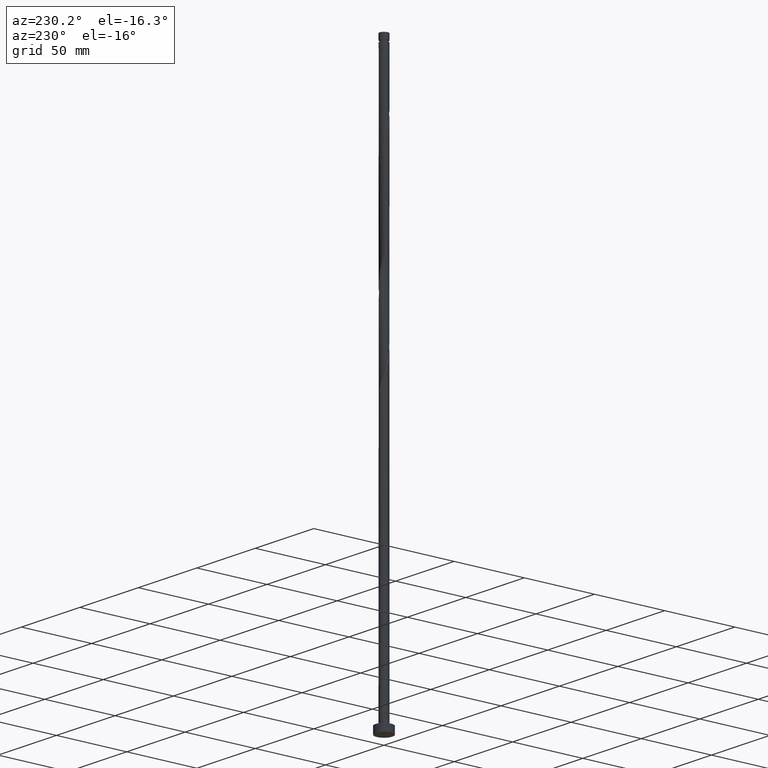
[diagram: clean part render]
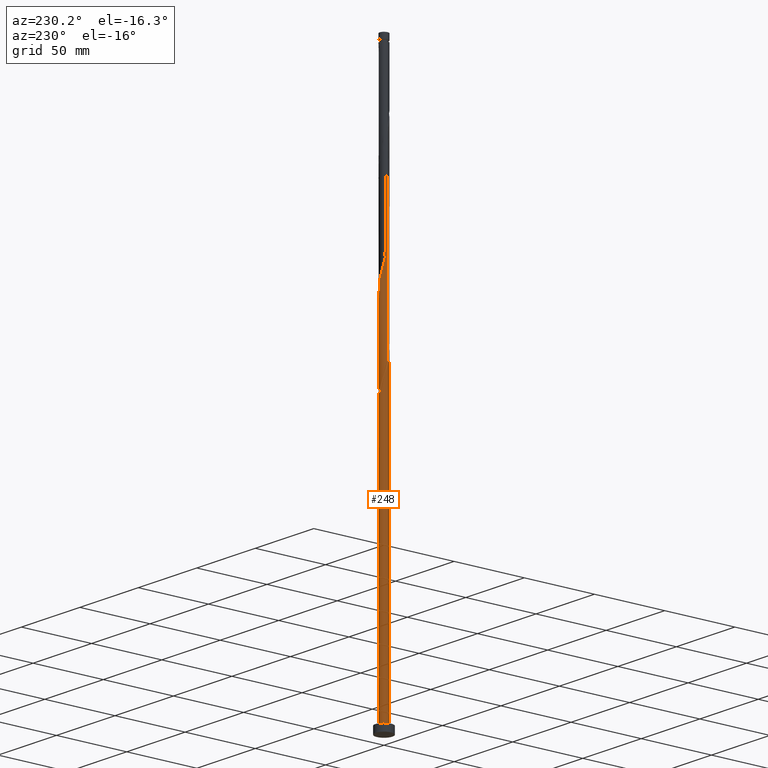
[diagram: same view with one face highlighted and labeled with its STEP entity id]
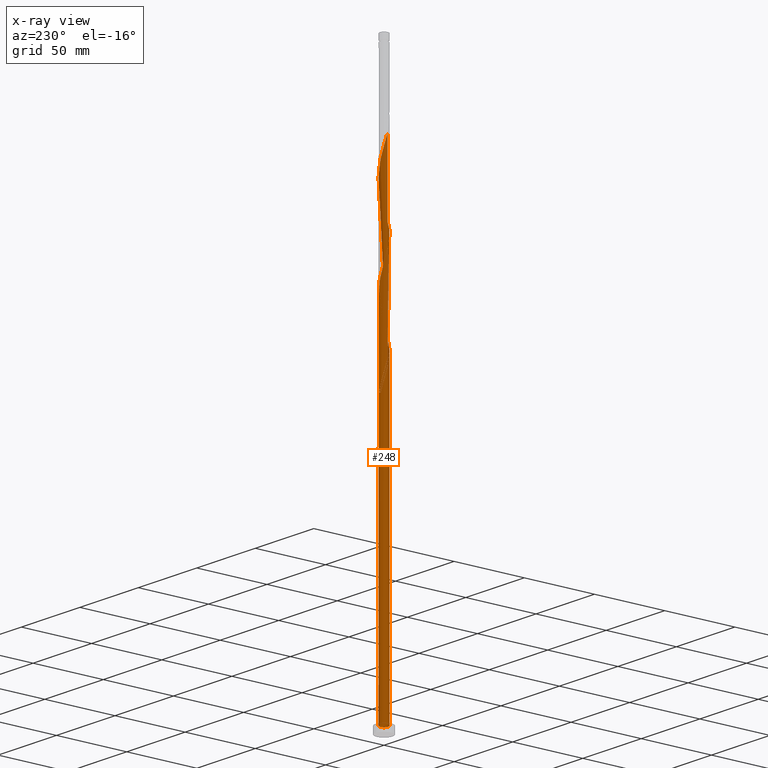
[diagram: x-ray of the same camera — body ghosted, the highlighted face saturated]
A machine part, auxiliary view. The second image highlights one B-rep face of the part: STEP entity #248.
The next image is the same camera in x-ray: the body ghosted, the highlighted face saturated — about 0% of this face is hidden behind the body in this view.
In plain terms, the highlighted cylindrical surface (bore or boss wall) has radius 3 mm, axis along (-0, -0, -1).
Its self-contained STEP definition (entity closure, byte-faithful):
#7 = DIRECTION ( 'NONE',  ( 1.000000000000000000, 0.000000000000000000, 0.000000000000000000 ) ) ;
#9 = CARTESIAN_POINT ( 'NONE',  ( 2.611625341554442592, 1.476283534877588677, 248.0167264924153301 ) ) ;
#16 = CARTESIAN_POINT ( 'NONE',  ( -2.211065689225174324, 2.027606598413812744, 268.0167264924152732 ) ) ;
#23 = ORIENTED_EDGE ( 'NONE', *, *, #684, .F. ) ;
#26 = CARTESIAN_POINT ( 'NONE',  ( -3.000000000000005329, -4.155659486944815332E-15, 209.2246165822271848 ) ) ;
#27 = EDGE_CURVE ( 'NONE', #652, #1348, #810, .T. ) ;
#31 = VERTEX_POINT ( 'NONE', #1615 ) ;
#42 = CARTESIAN_POINT ( 'NONE',  ( 1.785379858637181183, 2.410895841875527079, 252.4611709368597587 ) ) ;
#45 = CARTESIAN_POINT ( 'NONE',  ( -1.997955648279249985, 2.259998966802001075, 333.5722820479708730 ) ) ;
#53 = CARTESIAN_POINT ( 'NONE',  ( 1.531984494871655222, 2.598546826576329405, 253.5722820479708730 ) ) ;
#58 = CARTESIAN_POINT ( 'NONE',  ( -2.861491667719902043, -0.9010357570982429065, 279.1278376035264159 ) ) ;
#63 = CARTESIAN_POINT ( 'NONE',  ( 0.02731362638453996294, 2.999875658392153088, 259.1278376035264728 ) ) ;
#69 = CARTESIAN_POINT ( 'NONE',  ( -2.744447700168710647, 1.251970017003502411, 338.0167264924153869 ) ) ;
#78 = CARTESIAN_POINT ( 'NONE',  ( -1.741185482790981176, 2.443004935426444924, 265.7945042701931015 ) ) ;
#80 = CARTESIAN_POINT ( 'NONE',  ( 1.195207115623887484, -2.751632233922633120, 296.9056153813042442 ) ) ;
#87 = CARTESIAN_POINT ( 'NONE',  ( -1.195207115623887928, 2.751632233922632231, 330.2389487146376723 ) ) ;
#101 = CARTESIAN_POINT ( 'NONE',  ( 2.980586974261069333, -0.3407363920471043750, 241.3500598257486729 ) ) ;
#108 = CARTESIAN_POINT ( 'NONE',  ( -1.741185482790981176, 2.443004935426444924, 199.1278376035264444 ) ) ;
#113 = CARTESIAN_POINT ( 'NONE',  ( 1.997955648279249763, -2.259998966802001519, 233.5722820479708162 ) ) ;
#116 = VERTEX_POINT ( 'NONE', #1490 ) ;
#125 = CARTESIAN_POINT ( 'NONE',  ( 0.9059989139450639328, -2.877253563794377023, 229.1278376035264444 ) ) ;
#129 = CARTESIAN_POINT ( 'NONE',  ( -3.000000000000000444, 0.000000000000000000, 5.000000000000000000 ) ) ;
#132 = CARTESIAN_POINT ( 'NONE',  ( -2.956194341916742019, -0.6002808636434374678, 211.3500598257486729 ) ) ;
#135 = CARTESIAN_POINT ( 'NONE',  ( 1.484415317302711035, -2.626010904050888772, 231.3500598257486729 ) ) ;
#154 = EDGE_LOOP ( 'NONE', ( #23, #1266, #793, #633, #1800, #902, #686, #1023, #1782 ) ) ;
#171 = CARTESIAN_POINT ( 'NONE',  ( 2.456461689585824892, 1.750776419202128897, 249.1278376035264728 ) ) ;
#179 = CARTESIAN_POINT ( 'NONE',  ( 0.000000000000000000, 0.000000000000000000, 5.000000000000000000 ) ) ;
#192 = CARTESIAN_POINT ( 'NONE',  ( -1.245111594254572740, -2.729413328510884806, 288.0167264924152732 ) ) ;
#201 = CARTESIAN_POINT ( 'NONE',  ( 0.6504259784947296064, 2.928642355512054873, 323.5722820479708162 ) ) ;
#210 = CARTESIAN_POINT ( 'NONE',  ( 2.247618455994266906, 1.987010638188426048, 316.9056153813041874 ) ) ;
#218 = CARTESIAN_POINT ( 'NONE',  ( -2.766788993523061180, -1.201790650553048012, 280.2389487146375586 ) ) ;
#222 = CARTESIAN_POINT ( 'NONE',  ( 0.3426132633519641257, 2.997004880578675312, 258.0167264924153301 ) ) ;
#228 = CARTESIAN_POINT ( 'NONE',  ( -1.484415317302711479, 2.626010904050888772, 331.3500598257485876 ) ) ;
#244 = CARTESIAN_POINT ( 'NONE',  ( 0.000000000000000000, 0.000000000000000000, 5.000000000000000000 ) ) ;
#248 = ADVANCED_FACE ( 'NONE', ( #967 ), #414, .T. ) ;
#255 = CARTESIAN_POINT ( 'NONE',  ( -2.211065689225174324, 2.027606598413812744, 201.3500598257486729 ) ) ;
#259 = CARTESIAN_POINT ( 'NONE',  ( -0.3426132633519634596, -2.997004880578674424, 224.6833931590819873 ) ) ;
#265 = CARTESIAN_POINT ( 'NONE',  ( -2.986297077045553916, -0.2864083930844393833, 210.2389487146375586 ) ) ;
#271 = DIRECTION ( 'NONE',  ( 0.000000000000000000, 0.000000000000000000, 1.000000000000000000 ) ) ;
#279 = EDGE_CURVE ( 'NONE', #116, #31, #968, .T. ) ;
#291 = CARTESIAN_POINT ( 'NONE',  ( -2.861491667719896270, 0.9010357570982429065, 210.2389487146375302 ) ) ;
#300 = CARTESIAN_POINT ( 'NONE',  ( -2.038775222402704035, 2.223244857174722533, 204.6833931590820157 ) ) ;
#302 = CARTESIAN_POINT ( 'NONE',  ( -2.424175730171096887, 1.795214230025625302, 269.1278376035264159 ) ) ;
#332 = CARTESIAN_POINT ( 'NONE',  ( 1.785379858637181183, 2.410895841875527079, 319.1278376035264159 ) ) ;
#340 = CARTESIAN_POINT ( 'NONE',  ( -1.531984494871653668, -2.598546826576330293, 286.9056153813042442 ) ) ;
#344 = CIRCLE ( 'NONE', #1103, 3.000000000000000444 ) ;
#349 = CARTESIAN_POINT ( 'NONE',  ( -2.611625341554442592, -1.476283534877588899, 281.3500598257487013 ) ) ;
#360 = CARTESIAN_POINT ( 'NONE',  ( 0.02731362638453996294, 2.999875658392153088, 325.7945042701931015 ) ) ;
#370 = CARTESIAN_POINT ( 'NONE',  ( 3.016399812174365369, -0.02746407747455914192, 309.1278376035264159 ) ) ;
#414 = CYLINDRICAL_SURFACE ( 'NONE', #1262, 3.000000000000000444 ) ;
#424 = CARTESIAN_POINT ( 'NONE',  ( -2.861491667719902043, -0.9010357570982429065, 212.4611709368597587 ) ) ;
#433 = CARTESIAN_POINT ( 'NONE',  ( -0.3426132633519623494, 2.997004880578669983, 198.0167264924153301 ) ) ;
#442 = CARTESIAN_POINT ( 'NONE',  ( 0.5969924622639761758, 2.939999999999999503, 194.6833931590819589 ) ) ;
#464 = CARTESIAN_POINT ( 'NONE',  ( -0.2879860105828841443, 3.002746436205633529, 260.2389487146375018 ) ) ;
#490 = CARTESIAN_POINT ( 'NONE',  ( 2.766788993523062512, 1.201790650553046680, 313.5722820479708162 ) ) ;
#498 = CARTESIAN_POINT ( 'NONE',  ( -2.424175730171096887, 1.795214230025625302, 335.7945042701931584 ) ) ;
#508 = CARTESIAN_POINT ( 'NONE',  ( 0.5969924622639755096, -2.940000000000003944, 294.6833931590820157 ) ) ;
#511 = EDGE_CURVE ( 'NONE', #1111, #1879, #1469, .T. ) ;
#518 = CARTESIAN_POINT ( 'NONE',  ( -3.016399812174364925, 0.02746407747455818435, 275.7945042701931584 ) ) ;
#522 = DIRECTION ( 'NONE',  ( -0.000000000000000000, -0.000000000000000000, -1.000000000000000000 ) ) ;
#526 = CARTESIAN_POINT ( 'NONE',  ( 1.741185482790980066, -2.443004935426445368, 299.1278376035264728 ) ) ;
#528 = CARTESIAN_POINT ( 'NONE',  ( 2.038775222402707143, 2.223244857174724753, 251.3500598257486445 ) ) ;
#532 = CARTESIAN_POINT ( 'NONE',  ( 2.844610918258240861, -0.9529893618115774512, 239.1278376035264159 ) ) ;
#537 = DIRECTION ( 'NONE',  ( 1.000000000000000000, 0.000000000000000000, 0.000000000000000000 ) ) ;
#544 = CARTESIAN_POINT ( 'NONE',  ( -3.000000000000005329, -1.898448758424430341E-15, 342.5579499155604708 ) ) ;
#553 = DIRECTION ( 'NONE',  ( -1.000000000000000000, 0.000000000000000000, 0.000000000000000000 ) ) ;
#555 = CARTESIAN_POINT ( 'NONE',  ( 2.424175730171096887, -1.795214230025625968, 235.7945042701931584 ) ) ;
#559 = CARTESIAN_POINT ( 'NONE',  ( -2.944774136347772409, 0.6540087066196502708, 206.9056153813041874 ) ) ;
#570 = CARTESIAN_POINT ( 'NONE',  ( -0.9059989139450650431, 2.877253563794375246, 195.7945042701930731 ) ) ;
#571 = CARTESIAN_POINT ( 'NONE',  ( -2.456461689585819563, 1.750776419202128897, 206.9056153813042158 ) ) ;
#583 = CARTESIAN_POINT ( 'NONE',  ( -2.247618455994260689, 1.987010638188425604, 205.7945042701930447 ) ) ;
#591 = CARTESIAN_POINT ( 'NONE',  ( -2.766788993523056295, 1.201790650553048012, 209.1278376035264444 ) ) ;
#606 = CARTESIAN_POINT ( 'NONE',  ( -3.000000000000006217, 0.1709212123392805094, 208.6190252728426060 ) ) ;
#620 = CARTESIAN_POINT ( 'NONE',  ( 2.956194341916742019, 0.6002808636434371348, 244.6833931590819304 ) ) ;
#625 = CARTESIAN_POINT ( 'NONE',  ( -3.000000000000005329, -4.155659486944815332E-15, 209.2246165822271848 ) ) ;
#626 = AXIS2_PLACEMENT_3D ( 'NONE', #826, #709, #1001 ) ;
#627 = CARTESIAN_POINT ( 'NONE',  ( 0.9582386936374929221, 2.860279830445437987, 255.7945042701931868 ) ) ;
#628 = EDGE_CURVE ( 'NONE', #911, #31, #808, .T. ) ;
#631 = CARTESIAN_POINT ( 'NONE',  ( 2.861491667719902043, 0.9010357570982417963, 245.7945042701931015 ) ) ;
#633 = ORIENTED_EDGE ( 'NONE', *, *, #736, .T. ) ;
#636 = CARTESIAN_POINT ( 'NONE',  ( 0.3426132633519641257, 2.997004880578675312, 324.6833931590819589 ) ) ;
#646 = CARTESIAN_POINT ( 'NONE',  ( -2.211065689225174324, 2.027606598413812744, 334.6833931590819020 ) ) ;
#652 = VERTEX_POINT ( 'NONE', #1277 ) ;
#656 = CARTESIAN_POINT ( 'NONE',  ( 1.245111594254572740, 2.729413328510884806, 321.3500598257487013 ) ) ;
#665 = CARTESIAN_POINT ( 'NONE',  ( 2.211065689225174324, -2.027606598413812744, 301.3500598257487013 ) ) ;
#673 = CARTESIAN_POINT ( 'NONE',  ( -2.456461689585824892, -1.750776419202130008, 282.4611709368596735 ) ) ;
#684 = EDGE_CURVE ( 'NONE', #1879, #116, #1706, .T. ) ;
#686 = ORIENTED_EDGE ( 'NONE', *, *, #1496, .F. ) ;
#696 = CARTESIAN_POINT ( 'NONE',  ( 2.584311715169903323, -1.523592123514564634, 236.9056153813041874 ) ) ;
#702 = CARTESIAN_POINT ( 'NONE',  ( -2.584311715169904211, 1.523592123514563745, 203.5722820479708446 ) ) ;
#709 = DIRECTION ( 'NONE',  ( -5.135813185032630576E-30, -2.312964634635745107E-14, -1.000000000000000000 ) ) ;
#714 = CARTESIAN_POINT ( 'NONE',  ( -2.456461689585824892, -1.750776419202130008, 215.7945042701931300 ) ) ;
#717 = CARTESIAN_POINT ( 'NONE',  ( -0.9582386936374922559, -2.860279830445437987, 222.4611709368597019 ) ) ;
#722 = AXIS2_PLACEMENT_3D ( 'NONE', #179, #1214, #7 ) ;
#730 = CARTESIAN_POINT ( 'NONE',  ( -0.6504259784947280520, -2.928642355512055317, 223.5722820479709014 ) ) ;
#736 = EDGE_CURVE ( 'NONE', #1348, #652, #344, .T. ) ;
#753 = CARTESIAN_POINT ( 'NONE',  ( 2.247618455994266906, 1.987010638188426048, 250.2389487146375870 ) ) ;
#776 = CARTESIAN_POINT ( 'NONE',  ( -2.944774136347772409, 0.6540087066196502708, 273.5722820479708730 ) ) ;
#785 = CARTESIAN_POINT ( 'NONE',  ( -0.5969924622639750655, 2.940000000000003944, 328.0167264924153869 ) ) ;
#793 = ORIENTED_EDGE ( 'NONE', *, *, #852, .T. ) ;
#796 = CARTESIAN_POINT ( 'NONE',  ( -1.741185482790981176, 2.443004935426444924, 332.4611709368596735 ) ) ;
#805 = CARTESIAN_POINT ( 'NONE',  ( -2.038775222402706699, -2.223244857174725642, 284.6833931590820157 ) ) ;
#808 = CIRCLE ( 'NONE', #626, 3.000000000000000444 ) ;
#810 = CIRCLE ( 'NONE', #722, 3.000000000000000444 ) ;
#812 = CARTESIAN_POINT ( 'NONE',  ( -1.785379858637180517, -2.410895841875527079, 219.1278376035264159 ) ) ;
#816 = CARTESIAN_POINT ( 'NONE',  ( 1.484415317302711035, -2.626010904050888772, 298.0167264924153301 ) ) ;
#820 = CARTESIAN_POINT ( 'NONE',  ( -2.986297077045549919, 0.2864083930844405490, 212.4611709368597872 ) ) ;
#826 = CARTESIAN_POINT ( 'NONE',  ( 0.000000000000000000, 0.000000000000000000, 194.6833931590820157 ) ) ;
#835 = CARTESIAN_POINT ( 'NONE',  ( -1.195207115623887928, 2.751632233922632231, 196.9056153813041874 ) ) ;
#844 = CARTESIAN_POINT ( 'NONE',  ( -2.424175730171096887, 1.795214230025625302, 202.4611709368597587 ) ) ;
#848 = CARTESIAN_POINT ( 'NONE',  ( -3.000000000000003109, -0.1435319978602662139, 209.7331651077912795 ) ) ;
#851 = CARTESIAN_POINT ( 'NONE',  ( 0.2879860105828858097, -3.002746436205632197, 226.9056153813042442 ) ) ;
#852 = EDGE_CURVE ( 'NONE', #1111, #1348, #921, .T. ) ;
#862 = CARTESIAN_POINT ( 'NONE',  ( 1.195207115623887484, -2.751632233922633120, 230.2389487146375586 ) ) ;
#868 = CARTESIAN_POINT ( 'NONE',  ( -0.9582386936374893693, 2.860279830445435767, 200.2389487146375018 ) ) ;
#902 = ORIENTED_EDGE ( 'NONE', *, *, #852, .F. ) ;
#903 = CARTESIAN_POINT ( 'NONE',  ( -0.5969924622639749545, 2.940000000000003944, 194.6833931590819589 ) ) ;
#911 = VERTEX_POINT ( 'NONE', #903 ) ;
#917 = CARTESIAN_POINT ( 'NONE',  ( -2.584311715169904211, 1.523592123514563745, 336.9056153813042442 ) ) ;
#921 = LINE ( 'NONE', #1058, #1445 ) ;
#925 = CARTESIAN_POINT ( 'NONE',  ( 1.997955648279249763, -2.259998966802001519, 300.2389487146375018 ) ) ;
#935 = CARTESIAN_POINT ( 'NONE',  ( 2.744447700168710202, -1.251970017003502633, 304.6833931590820725 ) ) ;
#944 = CARTESIAN_POINT ( 'NONE',  ( -2.844610918258240861, 0.9529893618115765630, 339.1278376035263591 ) ) ;
#953 = CARTESIAN_POINT ( 'NONE',  ( -0.6504259784947280520, -2.928642355512055317, 290.2389487146375586 ) ) ;
#957 = CARTESIAN_POINT ( 'NONE',  ( -3.000000000000000444, 0.1435319978602483948, 212.9669545437060663 ) ) ;
#963 = CARTESIAN_POINT ( 'NONE',  ( -3.000000000000005329, -1.898448758424430341E-15, 342.5579499155605276 ) ) ;
#967 = FACE_OUTER_BOUND ( 'NONE', #154, .T. ) ;
#968 =( BOUNDED_CURVE ( )  B_SPLINE_CURVE ( 2, ( #987, #957, #820, #1173, #291, #591, #1317, #571, #583, #300, #1739, #1729, #1611, #868, #1301, #433, #1748, #1468, #442 ),
 .UNSPECIFIED., .F., .T. ) 
 B_SPLINE_CURVE_WITH_KNOTS ( ( 3, 2, 2, 2, 2, 2, 2, 2, 2, 3 ),
 ( 0.9295286012773114059, 0.9333333333333333481, 0.9416666666666666519, 0.9499999999999999556, 0.9583333333333333703, 0.9666666666666666741, 0.9749999999999999778, 0.9833333333333332815, 0.9916666666666666963, 1.000000000000000000 ),
 .UNSPECIFIED. ) 
 CURVE ( )  GEOMETRIC_REPRESENTATION_ITEM ( )  RATIONAL_B_SPLINE_CURVE ( ( 0.9066196499552450216, 0.9068171577856577459, 0.9090909090909568002, 0.9041108139712048519, 0.9090909090909568002, 0.9041108139712048519, 0.9090909090909568002, 0.9041108139712048519, 0.9090909090909568002, 0.9041108139712048519, 0.9090909090909568002, 0.9041108139712048519, 0.9090909090909568002, 0.9041108139712048519, 0.9090909090909568002, 0.9041108139712048519, 0.9090909090909568002, 0.9041108139712048519, 0.9090909090909568002 ) ) 
 REPRESENTATION_ITEM ( '' )  );
#987 = CARTESIAN_POINT ( 'NONE',  ( -3.000000000000000888, -2.899992591608992199E-15, 213.4755030692701894 ) ) ;
#988 = VECTOR ( 'NONE', #1143, 1000.000000000000000 ) ;
#996 = CARTESIAN_POINT ( 'NONE',  ( -2.611625341554442592, -1.476283534877588899, 214.6833931590819304 ) ) ;
#1001 = DIRECTION ( 'NONE',  ( 0.000000000000000000, 1.000000000000000000, -2.775557561562891036E-14 ) ) ;
#1010 = CARTESIAN_POINT ( 'NONE',  ( 0.6504259784947296064, 2.928642355512054873, 256.9056153813042442 ) ) ;
#1023 = ORIENTED_EDGE ( 'NONE', *, *, #628, .T. ) ;
#1030 = DIRECTION ( 'NONE',  ( -0.000000000000000000, -0.000000000000000000, -1.000000000000000000 ) ) ;
#1058 = CARTESIAN_POINT ( 'NONE',  ( -3.000000000000000444, 0.000000000000000000, 400.0000000000000000 ) ) ;
#1064 = CARTESIAN_POINT ( 'NONE',  ( -0.9059989139450650431, 2.877253563794375246, 329.1278376035263591 ) ) ;
#1072 = CARTESIAN_POINT ( 'NONE',  ( -2.844610918258240861, 0.9529893618115765630, 272.4611709368597872 ) ) ;
#1074 =( BOUNDED_CURVE ( )  B_SPLINE_CURVE ( 2, ( #1309, #570, #835, #1269, #108, #1565, #255, #844, #702, #1861, #1871, #559, #1478, #606, #26 ),
 .UNSPECIFIED., .F., .T. ) 
 B_SPLINE_CURVE_WITH_KNOTS ( ( 3, 2, 2, 2, 2, 2, 2, 3 ),
 ( 0.000000000000000000, 0.008333333333333303727, 0.01666666666666671848, 0.02500000000000002220, 0.03333333333333332593, 0.04166666666666662966, 0.05000000000000004441, 0.05452860127731191248 ),
 .UNSPECIFIED. ) 
 CURVE ( )  GEOMETRIC_REPRESENTATION_ITEM ( )  RATIONAL_B_SPLINE_CURVE ( ( 0.9090909090909630175, 0.9041108139712111802, 0.9090909090909630175, 0.9041108139712111802, 0.9090909090909630175, 0.9041108139712111802, 0.9090909090909630175, 0.9041108139712111802, 0.9090909090909630175, 0.9041108139712111802, 0.9090909090909630175, 0.9041108139712111802, 0.9090909090909630175, 0.9063845652765099015, 0.9066196499552513499 ) ) 
 REPRESENTATION_ITEM ( '' )  );
#1083 = CARTESIAN_POINT ( 'NONE',  ( 2.986297077045553916, 0.2864083930844378290, 310.2389487146375018 ) ) ;
#1091 = CARTESIAN_POINT ( 'NONE',  ( 2.038775222402707143, 2.223244857174724753, 318.0167264924152732 ) ) ;
#1100 = CARTESIAN_POINT ( 'NONE',  ( -2.980586974261069333, 0.3407363920471038754, 274.6833931590819589 ) ) ;
#1103 = AXIS2_PLACEMENT_3D ( 'NONE', #244, #271, #537 ) ;
#1105 = CARTESIAN_POINT ( 'NONE',  ( 0.000000000000000000, 0.000000000000000000, 400.0000000000000000 ) ) ;
#1107 = CARTESIAN_POINT ( 'NONE',  ( 2.944774136347772409, -0.6540087066196522692, 240.2389487146375302 ) ) ;
#1108 = CARTESIAN_POINT ( 'NONE',  ( 1.245111594254572740, 2.729413328510884806, 254.6833931590820157 ) ) ;
#1111 = VERTEX_POINT ( 'NONE', #625 ) ;
#1126 = CARTESIAN_POINT ( 'NONE',  ( 2.986297077045553916, 0.2864083930844378290, 243.5722820479709014 ) ) ;
#1135 = CARTESIAN_POINT ( 'NONE',  ( -2.766788993523061180, -1.201790650553048012, 213.5722820479708446 ) ) ;
#1139 = CARTESIAN_POINT ( 'NONE',  ( 2.744447700168710202, -1.251970017003502633, 238.0167264924152732 ) ) ;
#1143 = DIRECTION ( 'NONE',  ( -0.000000000000000000, -0.000000000000000000, -1.000000000000000000 ) ) ;
#1173 = CARTESIAN_POINT ( 'NONE',  ( -2.956194341916738466, 0.6002808636434376899, 211.3500598257487297 ) ) ;
#1206 = CARTESIAN_POINT ( 'NONE',  ( 2.766788993523062512, 1.201790650553046680, 246.9056153813041874 ) ) ;
#1210 = CARTESIAN_POINT ( 'NONE',  ( -2.944774136347772409, 0.6540087066196502708, 340.2389487146374449 ) ) ;
#1214 = DIRECTION ( 'NONE',  ( 0.000000000000000000, 0.000000000000000000, 1.000000000000000000 ) ) ;
#1222 = CARTESIAN_POINT ( 'NONE',  ( 2.956194341916742019, 0.6002808636434371348, 311.3500598257487013 ) ) ;
#1232 = CARTESIAN_POINT ( 'NONE',  ( -2.980586974261069333, 0.3407363920471038754, 341.3500598257487013 ) ) ;
#1241 = CARTESIAN_POINT ( 'NONE',  ( -0.9582386936374922559, -2.860279830445437987, 289.1278376035264728 ) ) ;
#1250 = CARTESIAN_POINT ( 'NONE',  ( 2.424175730171096887, -1.795214230025625968, 302.4611709368597303 ) ) ;
#1262 = AXIS2_PLACEMENT_3D ( 'NONE', #1105, #522, #553 ) ;
#1266 = ORIENTED_EDGE ( 'NONE', *, *, #511, .F. ) ;
#1269 = CARTESIAN_POINT ( 'NONE',  ( -1.484415317302711479, 2.626010904050888772, 198.0167264924153301 ) ) ;
#1273 = CARTESIAN_POINT ( 'NONE',  ( -1.245111594254572740, -2.729413328510884806, 221.3500598257486729 ) ) ;
#1274 = CARTESIAN_POINT ( 'NONE',  ( 3.016399812174365369, -0.02746407747455914192, 242.4611709368597587 ) ) ;
#1277 = CARTESIAN_POINT ( 'NONE',  ( 3.000000000000000444, 0.000000000000000000, 5.000000000000000000 ) ) ;
#1285 = CARTESIAN_POINT ( 'NONE',  ( -0.02731362638453954314, -2.999875658392153088, 225.7945042701931015 ) ) ;
#1294 = CARTESIAN_POINT ( 'NONE',  ( -2.247618455994265574, -1.987010638188426936, 216.9056153813042442 ) ) ;
#1301 = CARTESIAN_POINT ( 'NONE',  ( -0.6504259784947257206, 2.928642355512051321, 199.1278376035264159 ) ) ;
#1305 = CARTESIAN_POINT ( 'NONE',  ( -0.5969924622639750655, 2.940000000000003944, 261.3500598257486445 ) ) ;
#1309 = CARTESIAN_POINT ( 'NONE',  ( -0.5969924622639749545, 2.940000000000003944, 194.6833931590819589 ) ) ;
#1317 = CARTESIAN_POINT ( 'NONE',  ( -2.611625341554438151, 1.476283534877587567, 208.0167264924153301 ) ) ;
#1326 = CARTESIAN_POINT ( 'NONE',  ( -2.584311715169904211, 1.523592123514563745, 270.2389487146375586 ) ) ;
#1348 = VERTEX_POINT ( 'NONE', #129 ) ;
#1352 = CARTESIAN_POINT ( 'NONE',  ( 2.456461689585824892, 1.750776419202128897, 315.7945042701932152 ) ) ;
#1363 = CARTESIAN_POINT ( 'NONE',  ( -0.2879860105828841443, 3.002746436205633529, 326.9056153813043011 ) ) ;
#1371 = CARTESIAN_POINT ( 'NONE',  ( 2.584311715169903323, -1.523592123514564634, 303.5722820479708162 ) ) ;
#1381 = CARTESIAN_POINT ( 'NONE',  ( 0.9059989139450639328, -2.877253563794377023, 295.7945042701931015 ) ) ;
#1390 = CARTESIAN_POINT ( 'NONE',  ( 2.861491667719902043, 0.9010357570982417963, 312.4611709368598440 ) ) ;
#1416 = CARTESIAN_POINT ( 'NONE',  ( 2.211065689225174324, -2.027606598413812744, 234.6833931590819589 ) ) ;
#1428 = CARTESIAN_POINT ( 'NONE',  ( 0.5969924622639755096, -2.940000000000003944, 228.0167264924153301 ) ) ;
#1435 = CARTESIAN_POINT ( 'NONE',  ( -3.000000000000005329, -4.155659486944815332E-15, 209.2246165822271848 ) ) ;
#1445 = VECTOR ( 'NONE', #1030, 1000.000000000000000 ) ;
#1447 = CARTESIAN_POINT ( 'NONE',  ( -1.531984494871653668, -2.598546826576330293, 220.2389487146375018 ) ) ;
#1468 = CARTESIAN_POINT ( 'NONE',  ( 0.2879860105828867534, 3.002746436205628644, 195.7945042701931300 ) ) ;
#1469 =( BOUNDED_CURVE ( )  B_SPLINE_CURVE ( 2, ( #1435, #848, #265, #132, #424, #1135, #996, #714, #1294, #1510, #812, #1447, #1273, #717, #730, #259, #1285, #851, #1428, #125, #862, #135, #1561, #113, #1416, #555, #696, #1139, #532, #1107, #101, #1274, #1126, #620, #631, #1206, #9, #171, #753, #528, #42, #53, #1108, #627, #1010, #222, #63, #464, #1305, #1623, #1634, #1515, #78, #1824, #16, #302, #1326, #1819, #1072, #776, #1100, #518, #1664, #1672, #58, #218, #349, #673, #1497, #805, #1653, #340, #192, #1241, #953, #1681, #1815, #1825, #508, #1381, #80, #816, #526, #925, #665, #1250, #1371, #935, #1833, #1516, #1807, #370, #1083, #1222, #1390, #490, #1795, #1352, #210, #1091, #332, #1536, #656, #1506, #201, #636, #360, #1363, #785, #1064, #87, #228, #796, #45, #646, #498, #917, #69, #944, #1210, #1232, #1527, #963 ),
 .UNSPECIFIED., .F., .T. ) 
 B_SPLINE_CURVE_WITH_KNOTS ( ( 3, 2, 2, 2, 2, 2, 2, 2, 2, 2, 2, 2, 2, 2, 2, 2, 2, 2, 2, 2, 2, 2, 2, 2, 2, 2, 2, 2, 2, 2, 2, 2, 2, 2, 2, 2, 2, 2, 2, 2, 2, 2, 2, 2, 2, 2, 2, 2, 2, 2, 2, 2, 2, 2, 2, 2, 2, 2, 2, 2, 2, 3 ),
 ( 0.05452860127731191248, 0.05833333333333334814, 0.06666666666666665186, 0.07499999999999995559, 0.08333333333333337034, 0.09166666666666667407, 0.09999999999999997780, 0.1083333333333332815, 0.1166666666666666963, 0.1250000000000000000, 0.1333333333333333037, 0.1416666666666667185, 0.1500000000000000222, 0.1583333333333333259, 0.1666666666666666297, 0.1750000000000000444, 0.1833333333333333481, 0.1916666666666666519, 0.1999999999999999556, 0.2083333333333333703, 0.2166666666666666741, 0.2249999999999999778, 0.2333333333333332815, 0.2416666666666666963, 0.2500000000000000000, 0.2583333333333333037, 0.2666666666666667185, 0.2750000000000000222, 0.2833333333333333259, 0.2916666666666666297, 0.3000000000000000444, 0.3083333333333333481, 0.3166666666666666519, 0.3249999999999999556, 0.3333333333333333703, 0.3416666666666666741, 0.3499999999999999778, 0.3583333333333332815, 0.3666666666666666963, 0.3750000000000000000, 0.3833333333333333037, 0.3916666666666667185, 0.4000000000000000222, 0.4083333333333333259, 0.4166666666666666297, 0.4250000000000000444, 0.4333333333333333481, 0.4416666666666666519, 0.4499999999999999556, 0.4583333333333333703, 0.4666666666666666741, 0.4749999999999999778, 0.4833333333333332815, 0.4916666666666666963, 0.5000000000000000000, 0.5083333333333333037, 0.5166666666666666075, 0.5250000000000000222, 0.5333333333333333259, 0.5416666666666667407, 0.5500000000000000444, 0.5545286012773114059 ),
 .UNSPECIFIED. ) 
 CURVE ( )  GEOMETRIC_REPRESENTATION_ITEM ( )  RATIONAL_B_SPLINE_CURVE ( ( 0.9066196499552513499, 0.9068171577856642962, 0.9090909090909630175, 0.9041108139712111802, 0.9090909090909630175, 0.9041108139712111802, 0.9090909090909630175, 0.9041108139712111802, 0.9090909090909630175, 0.9041108139712111802, 0.9090909090909630175, 0.9041108139712111802, 0.9090909090909630175, 0.9041108139712111802, 0.9090909090909630175, 0.9041108139712111802, 0.9090909090909630175, 0.9041108139712111802, 0.9090909090909630175, 0.9041108139712111802, 0.9090909090909630175, 0.9041108139712111802, 0.9090909090909630175, 0.9041108139712111802, 0.9090909090909630175, 0.9041108139712111802, 0.9090909090909630175, 0.9041108139712111802, 0.9090909090909630175, 0.9041108139712111802, 0.9090909090909630175, 0.9041108139712111802, 0.9090909090909630175, 0.9041108139712111802, 0.9090909090909630175, 0.9041108139712111802, 0.9090909090909630175, 0.9041108139712111802, 0.9090909090909630175, 0.9041108139712111802, 0.9090909090909630175, 0.9041108139712111802, 0.9090909090909630175, 0.9041108139712111802, 0.9090909090909630175, 0.9041108139712111802, 0.9090909090909630175, 0.9041108139712111802, 0.9090909090909630175, 0.9041108139712111802, 0.9090909090909630175, 0.9041108139712111802, 0.9090909090909630175, 0.9041108139712111802, 0.9090909090909630175, 0.9041108139712111802, 0.9090909090909630175, 0.9041108139712111802, 0.9090909090909630175, 0.9041108139712111802, 0.9090909090909630175, 0.9041108139712111802, 0.9090909090909630175, 0.9041108139712111802, 0.9090909090909630175, 0.9041108139712111802, 0.9090909090909630175, 0.9041108139712111802, 0.9090909090909630175, 0.9041108139712111802, 0.9090909090909630175, 0.9041108139712111802, 0.9090909090909630175, 0.9041108139712111802, 0.9090909090909630175, 0.9041108139712111802, 0.9090909090909630175, 0.9041108139712111802, 0.9090909090909630175, 0.9041108139712111802, 0.9090909090909630175, 0.9041108139712111802, 0.9090909090909630175, 0.9041108139712111802, 0.9090909090909630175, 0.9041108139712111802, 0.9090909090909630175, 0.9041108139712111802, 0.9090909090909630175, 0.9041108139712111802, 0.9090909090909630175, 0.9041108139712111802, 0.9090909090909630175, 0.9041108139712111802, 0.9090909090909630175, 0.9041108139712111802, 0.9090909090909630175, 0.9041108139712111802, 0.9090909090909630175, 0.9041108139712111802, 0.9090909090909630175, 0.9041108139712111802, 0.9090909090909630175, 0.9041108139712111802, 0.9090909090909630175, 0.9041108139712111802, 0.9090909090909630175, 0.9041108139712111802, 0.9090909090909630175, 0.9041108139712111802, 0.9090909090909630175, 0.9041108139712111802, 0.9090909090909630175, 0.9041108139712111802, 0.9090909090909630175, 0.9041108139712111802, 0.9090909090909630175, 0.9041108139712111802, 0.9090909090909630175, 0.9041108139712111802, 0.9090909090909630175, 0.9063845652765101235, 0.9066196499552512389 ) ) 
 REPRESENTATION_ITEM ( '' )  );
#1478 = CARTESIAN_POINT ( 'NONE',  ( -2.980586974261069333, 0.3407363920471038754, 208.0167264924153301 ) ) ;
#1490 = CARTESIAN_POINT ( 'NONE',  ( -3.000000000000000888, -2.899992591608992199E-15, 213.4755030692701894 ) ) ;
#1496 = EDGE_CURVE ( 'NONE', #911, #1111, #1074, .T. ) ;
#1497 = CARTESIAN_POINT ( 'NONE',  ( -2.247618455994265574, -1.987010638188426936, 283.5722820479709299 ) ) ;
#1506 = CARTESIAN_POINT ( 'NONE',  ( 0.9582386936374929221, 2.860279830445437987, 322.4611709368599008 ) ) ;
#1510 = CARTESIAN_POINT ( 'NONE',  ( -2.038775222402706699, -2.223244857174725642, 218.0167264924153301 ) ) ;
#1515 = CARTESIAN_POINT ( 'NONE',  ( -1.484415317302711479, 2.626010904050888772, 264.6833931590819589 ) ) ;
#1516 = CARTESIAN_POINT ( 'NONE',  ( 2.944774136347772409, -0.6540087066196522692, 306.9056153813041306 ) ) ;
#1527 = CARTESIAN_POINT ( 'NONE',  ( -3.000000000000004885, 0.1709212123392995497, 341.9523586061758351 ) ) ;
#1536 = CARTESIAN_POINT ( 'NONE',  ( 1.531984494871655222, 2.598546826576329405, 320.2389487146375586 ) ) ;
#1553 = CARTESIAN_POINT ( 'NONE',  ( -3.000000000000000444, 0.000000000000000000, 400.0000000000000000 ) ) ;
#1561 = CARTESIAN_POINT ( 'NONE',  ( 1.741185482790980066, -2.443004935426445368, 232.4611709368598156 ) ) ;
#1565 = CARTESIAN_POINT ( 'NONE',  ( -1.997955648279249985, 2.259998966802001075, 200.2389487146375302 ) ) ;
#1611 = CARTESIAN_POINT ( 'NONE',  ( -1.245111594254569853, 2.729413328510880810, 201.3500598257486445 ) ) ;
#1615 = CARTESIAN_POINT ( 'NONE',  ( 0.5969924622639760647, 2.939999999999999503, 194.6833931590819589 ) ) ;
#1623 = CARTESIAN_POINT ( 'NONE',  ( -0.9059989139450650431, 2.877253563794375246, 262.4611709368597303 ) ) ;
#1634 = CARTESIAN_POINT ( 'NONE',  ( -1.195207115623887928, 2.751632233922632231, 263.5722820479708730 ) ) ;
#1653 = CARTESIAN_POINT ( 'NONE',  ( -1.785379858637180517, -2.410895841875527079, 285.7945042701931015 ) ) ;
#1664 = CARTESIAN_POINT ( 'NONE',  ( -2.986297077045553916, -0.2864083930844393833, 276.9056153813042442 ) ) ;
#1672 = CARTESIAN_POINT ( 'NONE',  ( -2.956194341916742019, -0.6002808636434374678, 278.0167264924152732 ) ) ;
#1681 = CARTESIAN_POINT ( 'NONE',  ( -0.3426132633519634596, -2.997004880578674424, 291.3500598257486445 ) ) ;
#1706 = LINE ( 'NONE', #1553, #988 ) ;
#1729 = CARTESIAN_POINT ( 'NONE',  ( -1.531984494871650337, 2.598546826576327184, 202.4611709368598440 ) ) ;
#1739 = CARTESIAN_POINT ( 'NONE',  ( -1.785379858637176742, 2.410895841875524859, 203.5722820479708730 ) ) ;
#1748 = CARTESIAN_POINT ( 'NONE',  ( -0.02731362638453766964, 2.999875658392149091, 196.9056153813042158 ) ) ;
#1782 = ORIENTED_EDGE ( 'NONE', *, *, #279, .F. ) ;
#1795 = CARTESIAN_POINT ( 'NONE',  ( 2.611625341554442592, 1.476283534877588677, 314.6833931590820157 ) ) ;
#1800 = ORIENTED_EDGE ( 'NONE', *, *, #27, .T. ) ;
#1807 = CARTESIAN_POINT ( 'NONE',  ( 2.980586974261069333, -0.3407363920471043750, 308.0167264924154438 ) ) ;
#1815 = CARTESIAN_POINT ( 'NONE',  ( -0.02731362638453954314, -2.999875658392153088, 292.4611709368597872 ) ) ;
#1819 = CARTESIAN_POINT ( 'NONE',  ( -2.744447700168710647, 1.251970017003502411, 271.3500598257486445 ) ) ;
#1824 = CARTESIAN_POINT ( 'NONE',  ( -1.997955648279249985, 2.259998966802001075, 266.9056153813041874 ) ) ;
#1825 = CARTESIAN_POINT ( 'NONE',  ( 0.2879860105828858097, -3.002746436205632197, 293.5722820479708730 ) ) ;
#1833 = CARTESIAN_POINT ( 'NONE',  ( 2.844610918258240861, -0.9529893618115774512, 305.7945042701931584 ) ) ;
#1861 = CARTESIAN_POINT ( 'NONE',  ( -2.744447700168710647, 1.251970017003502411, 204.6833931590819873 ) ) ;
#1871 = CARTESIAN_POINT ( 'NONE',  ( -2.844610918258240861, 0.9529893618115765630, 205.7945042701930731 ) ) ;
#1879 = VERTEX_POINT ( 'NONE', #544 ) ;